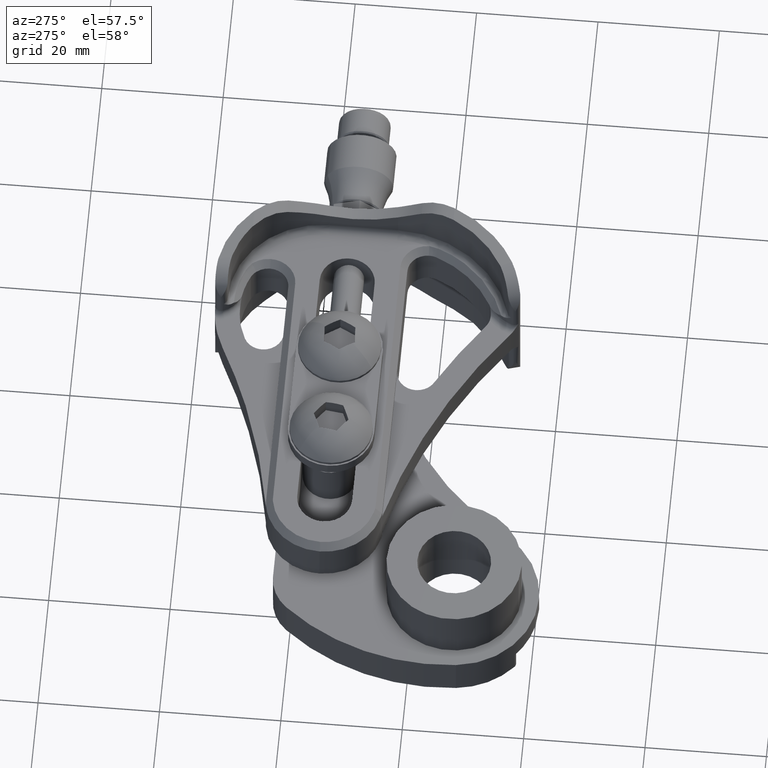
[diagram: clean part render]
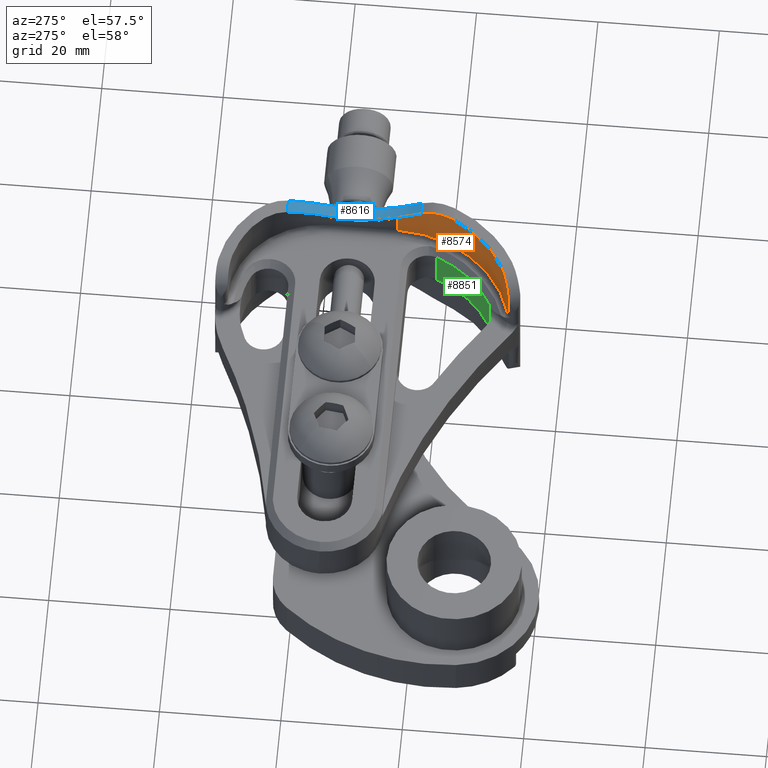
[diagram: same view with three faces highlighted in distinct colors, each labeled with its STEP entity id]
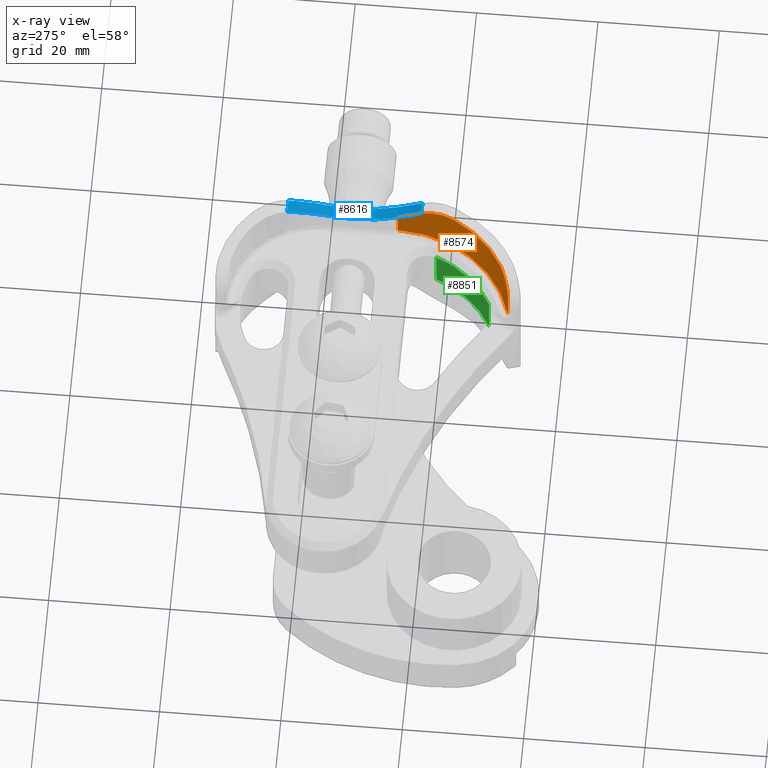
[diagram: x-ray of the same camera — body ghosted, the three highlighted faces saturated]
A machine part, auxiliary view with three faces highlighted in distinct colors.
The next image is the same camera in x-ray (body ghosted, the three faces saturated) — at least one of them is partly hidden behind the body in this view.
Their STEP definitions:

[orange] entity #8574 — the highlighted cylindrical surface (partial cylindrical patch) has radius 20.193 mm, axis along (-0, -0, -1).
#66 = B_SPLINE_CURVE_WITH_KNOTS ( 'NONE', 3,
 ( #7934, #3517, #514, #5762, #1287, #6510 ),
 .UNSPECIFIED., .F., .F.,
 ( 4, 2, 4 ),
 ( 2.235034852805296521E-17, 0.003081094262350567853, 0.006162188524701113154 ),
 .UNSPECIFIED. ) ;
#92 = EDGE_CURVE ( 'NONE', #4321, #6588, #987, .T. ) ;
#171 = DIRECTION ( 'NONE',  ( -1.942569979106741571E-29, 5.152247787224733354E-30, 1.000000000000000000 ) ) ;
#514 = CARTESIAN_POINT ( 'NONE',  ( 0.1102979306784820923, -0.5158705401963460391, -0.5060726423173582678 ) ) ;
#704 = DIRECTION ( 'NONE',  ( 1.000000000000000000, 8.590716961208367124E-16, 0.0000000000000000000 ) ) ;
#828 = EDGE_CURVE ( 'NONE', #3247, #5521, #6571, .T. ) ;
#948 = DIRECTION ( 'NONE',  ( 1.942569979106741571E-29, -5.152247787224734055E-30, -1.000000000000000000 ) ) ;
#987 =( BOUNDED_CURVE ( )  B_SPLINE_CURVE ( 3, ( #3945, #6664, #2362, #8272 ),
 .UNSPECIFIED., .F., .F. ) 
 B_SPLINE_CURVE_WITH_KNOTS ( ( 4, 4 ),
 ( 2.052012819952659939, 2.652010654829786152 ),
 .UNSPECIFIED. ) 
 CURVE ( )  GEOMETRIC_REPRESENTATION_ITEM ( )  RATIONAL_B_SPLINE_CURVE ( ( 1.000000000000000000, 0.9702245393625503755, 0.9702245393625503755, 1.000000000000000000 ) ) 
 REPRESENTATION_ITEM ( '' )  );
#1120 = CARTESIAN_POINT ( 'NONE',  ( 0.5313522239866911301, -1.012070845212795112, -0.5390121731721564391 ) ) ;
#1144 = CARTESIAN_POINT ( 'NONE',  ( 0.6578765363112906162, -1.059776384458196663, -0.2219999999999999196 ) ) ;
#1267 = CARTESIAN_POINT ( 'NONE',  ( 0.08000000015334911285, -0.2949999983655037794, -0.3754530464674544210 ) ) ;
#1287 = CARTESIAN_POINT ( 'NONE',  ( 0.1513186902098405673, -0.6266468634362848400, -0.5370702067610136909 ) ) ;
#1498 = FACE_OUTER_BOUND ( 'NONE', #6177, .T. ) ;
#1851 = CARTESIAN_POINT ( 'NONE',  ( 0.5751798306305195840, -1.031439280984141504, -0.5184893400669392527 ) ) ;
#2362 = CARTESIAN_POINT ( 'NONE',  ( 0.3586772725397623929, -0.9206964840180914544, -0.5445238177852055328 ) ) ;
#2436 = DIRECTION ( 'NONE',  ( 1.000000000000000000, -4.295358480604183439E-17, 0.0000000000000000000 ) ) ;
#2493 = CARTESIAN_POINT ( 'NONE',  ( 0.1702861501486991336, -0.6629719964671093591, -0.5379909813278305197 ) ) ;
#2520 = VERTEX_POINT ( 'NONE', #9549 ) ;
#2619 = CARTESIAN_POINT ( 'NONE',  ( 0.6148491878824364765, -1.046330517246482961, -0.4886674123589442309 ) ) ;
#2757 = ORIENTED_EDGE ( 'NONE', *, *, #4303, .F. ) ;
#3058 = CIRCLE ( 'NONE', #4402, 0.7950000000000007061 ) ;
#3247 = VERTEX_POINT ( 'NONE', #9373 ) ;
#3264 = CYLINDRICAL_SURFACE ( 'NONE', #9135, 0.7950000000000007061 ) ;
#3363 = CARTESIAN_POINT ( 'NONE',  ( 0.6379435170215157491, -1.053853828694177430, -0.4636230078597393112 ) ) ;
#3385 = ORIENTED_EDGE ( 'NONE', *, *, #7802, .F. ) ;
#3517 = CARTESIAN_POINT ( 'NONE',  ( 0.1013114392571240058, -0.4808174924626279489, -0.4879747470860779091 ) ) ;
#3640 = CARTESIAN_POINT ( 'NONE',  ( 0.09492365577034740654, -0.4483163312515318077, -0.4637409315620644179 ) ) ;
#3847 = CARTESIAN_POINT ( 'NONE',  ( 0.5011456603742315830, -0.9966109557364972726, -0.5464481084616324980 ) ) ;
#3945 = CARTESIAN_POINT ( 'NONE',  ( 0.1702861501486991336, -0.6629719964671093591, -0.5379909813278305197 ) ) ;
#3954 = CARTESIAN_POINT ( 'NONE',  ( 0.8749999998903248422, -0.2950000002740035265, -0.5499999999999998224 ) ) ;
#4038 = CARTESIAN_POINT ( 'NONE',  ( 0.5163813756351165463, -1.004729327066881561, -0.5435731828224922291 ) ) ;
#4073 = CARTESIAN_POINT ( 'NONE',  ( 0.09492365577034740654, -0.4483163312515318077, -0.4637409315620644179 ) ) ;
#4129 = CARTESIAN_POINT ( 'NONE',  ( 0.6533098982328265913, -1.058479557805904081, -0.4429805944951979990 ) ) ;
#4250 = CARTESIAN_POINT ( 'NONE',  ( 0.6578764476375358328, -1.059776696795379669, -0.3644199867943336280 ) ) ;
#4303 = EDGE_CURVE ( 'NONE', #2520, #7319, #7047, .T. ) ;
#4321 = VERTEX_POINT ( 'NONE', #2493 ) ;
#4384 = CARTESIAN_POINT ( 'NONE',  ( 0.08000000015334911285, -0.2949999983655037794, -0.3754530464674544210 ) ) ;
#4402 = AXIS2_PLACEMENT_3D ( 'NONE', #9524, #5191, #704 ) ;
#4568 = CARTESIAN_POINT ( 'NONE',  ( 0.6578765363112906162, -1.059776384458196663, -0.2219999999999999196 ) ) ;
#4650 = CARTESIAN_POINT ( 'NONE',  ( 0.6578764476375358328, -1.059776696795379669, -0.2932099933971669126 ) ) ;
#4755 = CARTESIAN_POINT ( 'NONE',  ( 0.07999999989032405279, -0.2949999983655037239, -0.5499999999999999334 ) ) ;
#4902 = ORIENTED_EDGE ( 'NONE', *, *, #9183, .F. ) ;
#5077 = VECTOR ( 'NONE', #948, 39.37007874015748143 ) ;
#5191 = DIRECTION ( 'NONE',  ( 1.942569979106741571E-29, -5.152247787224733354E-30, -1.000000000000000000 ) ) ;
#5200 = B_SPLINE_CURVE_WITH_KNOTS ( 'NONE', 3,
 ( #3640, #8047, #8762, #4384 ),
 .UNSPECIFIED., .F., .F.,
 ( 4, 4 ),
 ( 1.166915873571243093E-17, 0.004509724334207698519 ),
 .UNSPECIFIED. ) ;
#5521 = VERTEX_POINT ( 'NONE', #1144 ) ;
#5762 = CARTESIAN_POINT ( 'NONE',  ( 0.1356547551739493707, -0.5898247943089420797, -0.5309649571294929871 ) ) ;
#5987 = ORIENTED_EDGE ( 'NONE', *, *, #828, .F. ) ;
#6119 = CARTESIAN_POINT ( 'NONE',  ( 0.6578765363114345011, -1.059776384458323450, -0.4356299801914999548 ) ) ;
#6140 = ORIENTED_EDGE ( 'NONE', *, *, #6844, .T. ) ;
#6177 = EDGE_LOOP ( 'NONE', ( #3385, #6140, #2757, #6208, #5987, #4902, #8705 ) ) ;
#6208 = ORIENTED_EDGE ( 'NONE', *, *, #6915, .F. ) ;
#6334 = CARTESIAN_POINT ( 'NONE',  ( 0.5606760005156149473, -1.025400447947630189, -0.5265348846591456633 ) ) ;
#6510 = CARTESIAN_POINT ( 'NONE',  ( 0.1702861501486991336, -0.6629719964671093591, -0.5379909813278305197 ) ) ;
#6571 = B_SPLINE_CURVE_WITH_KNOTS ( 'NONE', 3,
 ( #6119, #4250, #4650, #4568 ),
 .UNSPECIFIED., .F., .F.,
 ( 4, 4 ),
 ( 0.0000000000000000000, 1.000000000000000000 ),
 .UNSPECIFIED. ) ;
#6588 = VERTEX_POINT ( 'NONE', #3847 ) ;
#6664 = CARTESIAN_POINT ( 'NONE',  ( 0.2450061593756170109, -0.8060704547731534220, -0.5416182611191305840 ) ) ;
#6703 = VERTEX_POINT ( 'NONE', #4073 ) ;
#6844 = EDGE_CURVE ( 'NONE', #6703, #7319, #5200, .T. ) ;
#6915 = EDGE_CURVE ( 'NONE', #5521, #2520, #3058, .T. ) ;
#6967 = CARTESIAN_POINT ( 'NONE',  ( 0.5011456603742315830, -0.9966109557364972726, -0.5464481084616324980 ) ) ;
#7047 = LINE ( 'NONE', #4755, #5077 ) ;
#7067 = CARTESIAN_POINT ( 'NONE',  ( 0.6022145673973170465, -1.041875529319804983, -0.4995553996819903086 ) ) ;
#7319 = VERTEX_POINT ( 'NONE', #1267 ) ;
#7781 = CARTESIAN_POINT ( 'NONE',  ( 0.6323575138046474420, -1.052091389491174755, -0.4701578945256206232 ) ) ;
#7802 = EDGE_CURVE ( 'NONE', #6703, #4321, #66, .T. ) ;
#7934 = CARTESIAN_POINT ( 'NONE',  ( 0.09492365577034740654, -0.4483163312515318077, -0.4637409315620644179 ) ) ;
#8047 = CARTESIAN_POINT ( 'NONE',  ( 0.08562427084575360836, -0.4010008877610077294, -0.4284611542784509397 ) ) ;
#8272 = CARTESIAN_POINT ( 'NONE',  ( 0.5011456603742315830, -0.9966109557364972726, -0.5464481084616324980 ) ) ;
#8334 = B_SPLINE_CURVE_WITH_KNOTS ( 'NONE', 3,
 ( #6967, #4038, #1120, #6334, #1851, #7067, #2619, #7781, #3363, #8517, #4129, #9221 ),
 .UNSPECIFIED., .F., .F.,
 ( 4, 2, 2, 2, 2, 4 ),
 ( 1.993045536433795362E-17, 0.001314768276617615328, 0.002629536553235210707, 0.003944304829852809773, 0.004601688968161609522, 0.005259073106470409271 ),
 .UNSPECIFIED. ) ;
#8517 = CARTESIAN_POINT ( 'NONE',  ( 0.6484059697891784158, -1.057043341889561283, -0.4500480678211302155 ) ) ;
#8574 = ADVANCED_FACE ( 'NONE', ( #1498 ), #3264, .F. ) ;
#8705 = ORIENTED_EDGE ( 'NONE', *, *, #92, .F. ) ;
#8762 = CARTESIAN_POINT ( 'NONE',  ( 0.07999999975831374732, -0.3499894319795386899, -0.3989784680911551140 ) ) ;
#9135 = AXIS2_PLACEMENT_3D ( 'NONE', #3954, #171, #2436 ) ;
#9183 = EDGE_CURVE ( 'NONE', #6588, #3247, #8334, .T. ) ;
#9221 = CARTESIAN_POINT ( 'NONE',  ( 0.6578765363114345011, -1.059776384458323450, -0.4356299801914999548 ) ) ;
#9373 = CARTESIAN_POINT ( 'NONE',  ( 0.6578765363114345011, -1.059776384458323450, -0.4356299801914999548 ) ) ;
#9524 = CARTESIAN_POINT ( 'NONE',  ( 0.8749999998903248422, -0.2950000002740035265, -0.2219999999999999196 ) ) ;
#9549 = CARTESIAN_POINT ( 'NONE',  ( 0.07999999989032460790, -0.2949999983654961744, -0.2219999999999999751 ) ) ;

[blue] entity #8616 — the highlighted cylindrical surface (partial cylindrical patch) has radius 19.05 mm, axis along (-1, 0, 0).
#211 = EDGE_CURVE ( 'NONE', #7319, #6436, #1268, .T. ) ;
#289 = CARTESIAN_POINT ( 'NONE',  ( 0.1090515474671307772, 0.3352715135350957665, -0.3936802972346292173 ) ) ;
#292 = EDGE_CURVE ( 'NONE', #5027, #2082, #6752, .T. ) ;
#523 = AXIS2_PLACEMENT_3D ( 'NONE', #8407, #4722, #5536 ) ;
#542 = CARTESIAN_POINT ( 'NONE',  ( 0.1427939972888279674, 0.4172785631699938991, -0.4417997107750022967 ) ) ;
#689 = CARTESIAN_POINT ( 'NONE',  ( -3.445488492270663157E-10, -0.3499205712378404276, -0.3989490081135677602 ) ) ;
#1056 = CARTESIAN_POINT ( 'NONE',  ( 0.1331811675249211790, 0.3978119999573185295, -0.4287654107706241891 ) ) ;
#1125 = ORIENTED_EDGE ( 'NONE', *, *, #2909, .F. ) ;
#1267 = CARTESIAN_POINT ( 'NONE',  ( 0.08000000015334911285, -0.2949999983655037794, -0.3754530464674544210 ) ) ;
#1268 = CIRCLE ( 'NONE', #4561, 0.7499999999999998890 ) ;
#1297 = CARTESIAN_POINT ( 'NONE',  ( 0.01353665031845256717, -0.4483163312515334176, -0.4637409315620607542 ) ) ;
#1456 = CARTESIAN_POINT ( 'NONE',  ( 0.005106482937376046437, -0.4009483817105403136, -0.4284220042329298095 ) ) ;
#1546 = CARTESIAN_POINT ( 'NONE',  ( 1.306787819905680938E-09, 0.1482960026661968023, -0.3298073072235007674 ) ) ;
#1854 = DIRECTION ( 'NONE',  ( -1.000000000000000000, 2.775557561562891967E-17, 1.932709217791477242E-29 ) ) ;
#1869 = AXIS2_PLACEMENT_3D ( 'NONE', #3947, #8855, #2107 ) ;
#2082 = VERTEX_POINT ( 'NONE', #7624 ) ;
#2107 = DIRECTION ( 'NONE',  ( 0.0000000000000000000, 0.0000000000000000000, -1.000000000000000000 ) ) ;
#2270 = ORIENTED_EDGE ( 'NONE', *, *, #292, .F. ) ;
#2537 = CARTESIAN_POINT ( 'NONE',  ( -1.096760477712379116E-10, 0.4172785631699929554, -0.4417997107750067931 ) ) ;
#2780 = DIRECTION ( 'NONE',  ( -1.000000000000000000, 2.775557561562891967E-17, 1.932709217791477242E-29 ) ) ;
#2865 = CIRCLE ( 'NONE', #1869, 0.7499999999999998890 ) ;
#2903 = DIRECTION ( 'NONE',  ( 0.0000000000000000000, -4.440892098514874567E-15, -1.000000000000000000 ) ) ;
#2909 = EDGE_CURVE ( 'NONE', #2082, #5944, #7833, .T. ) ;
#2943 = VECTOR ( 'NONE', #7813, 39.37007874015748143 ) ;
#2959 = B_SPLINE_CURVE_WITH_KNOTS ( 'NONE', 3,
 ( #8423, #6972, #9137, #4778, #289, #5530, #1056, #6276 ),
 .UNSPECIFIED., .F., .F.,
 ( 4, 2, 2, 4 ),
 ( 0.0000000000000000000, 0.003802409226754253913, 0.005703613840131379134, 0.007604818453508506090 ),
 .UNSPECIFIED. ) ;
#2961 = CARTESIAN_POINT ( 'NONE',  ( 0.08000000068544931009, 0.1482960011843963422, -0.3298073069246059696 ) ) ;
#2963 = ORIENTED_EDGE ( 'NONE', *, *, #7226, .F. ) ;
#3034 = CYLINDRICAL_SURFACE ( 'NONE', #523, 0.7499999999999998890 ) ;
#3035 = CARTESIAN_POINT ( 'NONE',  ( 1.891642471126310149E-09, 0.1729691938370575832, -0.3347841461752045222 ) ) ;
#3640 = CARTESIAN_POINT ( 'NONE',  ( 0.09492365577034740654, -0.4483163312515318077, -0.4637409315620644179 ) ) ;
#3659 = EDGE_LOOP ( 'NONE', ( #7362, #7334, #2963, #6015, #3981, #1125, #2270, #8690 ) ) ;
#3947 = CARTESIAN_POINT ( 'NONE',  ( 8.274518974641630167E-10, -2.740035342101275231E-10, -1.065000000000000169 ) ) ;
#3981 = ORIENTED_EDGE ( 'NONE', *, *, #4409, .F. ) ;
#4000 = CARTESIAN_POINT ( 'NONE',  ( 0.001323858787829107313, 0.1972181681757338989, -0.3409644625508653215 ) ) ;
#4064 = CARTESIAN_POINT ( 'NONE',  ( 0.05480368414606802407, 0.4172785631699980069, -0.4417997107750024077 ) ) ;
#4073 = CARTESIAN_POINT ( 'NONE',  ( 0.09492365577034740654, -0.4483163312515318077, -0.4637409315620644179 ) ) ;
#4384 = CARTESIAN_POINT ( 'NONE',  ( 0.08000000015334911285, -0.2949999983655037794, -0.3754530464674544210 ) ) ;
#4409 = EDGE_CURVE ( 'NONE', #5944, #7514, #2865, .T. ) ;
#4561 = AXIS2_PLACEMENT_3D ( 'NONE', #8309, #2780, #2903 ) ;
#4638 = B_SPLINE_CURVE_WITH_KNOTS ( 'NONE', 3,
 ( #5176, #689, #1456, #6680 ),
 .UNSPECIFIED., .F., .F.,
 ( 4, 4 ),
 ( 9.082235670257418936E-13, 0.004506899887366680110 ),
 .UNSPECIFIED. ) ;
#4722 = DIRECTION ( 'NONE',  ( 1.000000000000000000, -2.775557561562891967E-17, -1.932709217791477242E-29 ) ) ;
#4778 = CARTESIAN_POINT ( 'NONE',  ( 0.1023318196052253187, 0.3131425205207762907, -0.3830599769993444648 ) ) ;
#4801 = CARTESIAN_POINT ( 'NONE',  ( 0.01016994846164503627, 0.2683394396907051727, -0.3642210438163758224 ) ) ;
#4912 = VERTEX_POINT ( 'NONE', #1297 ) ;
#5027 = VERTEX_POINT ( 'NONE', #542 ) ;
#5176 = CARTESIAN_POINT ( 'NONE',  ( 3.588877882540628677E-10, -0.2949999965319944906, -0.3754530456830474372 ) ) ;
#5200 = B_SPLINE_CURVE_WITH_KNOTS ( 'NONE', 3,
 ( #3640, #8047, #8762, #4384 ),
 .UNSPECIFIED., .F., .F.,
 ( 4, 4 ),
 ( 1.166915873571243093E-17, 0.004509724334207698519 ),
 .UNSPECIFIED. ) ;
#5241 = CARTESIAN_POINT ( 'NONE',  ( 3.588877882540628677E-10, -0.2949999965319944906, -0.3754530456830474372 ) ) ;
#5530 = CARTESIAN_POINT ( 'NONE',  ( 0.1244666690246662433, 0.3775467864406481522, -0.4165128720365591786 ) ) ;
#5536 = DIRECTION ( 'NONE',  ( 0.0000000000000000000, 0.0000000000000000000, -1.000000000000000000 ) ) ;
#5944 = VERTEX_POINT ( 'NONE', #7308 ) ;
#5976 = EDGE_CURVE ( 'NONE', #7514, #4912, #4638, .T. ) ;
#6015 = ORIENTED_EDGE ( 'NONE', *, *, #5976, .F. ) ;
#6276 = CARTESIAN_POINT ( 'NONE',  ( 0.1427939972888279674, 0.4172785631699938991, -0.4417997107750022967 ) ) ;
#6436 = VERTEX_POINT ( 'NONE', #2961 ) ;
#6523 = CARTESIAN_POINT ( 'NONE',  ( 0.02449457514959593393, 0.3359146788927947491, -0.3926532663857130734 ) ) ;
#6680 = CARTESIAN_POINT ( 'NONE',  ( 0.01353665031845256717, -0.4483163312515334176, -0.4637409315620607542 ) ) ;
#6681 = EDGE_CURVE ( 'NONE', #6436, #5027, #2959, .T. ) ;
#6703 = VERTEX_POINT ( 'NONE', #4073 ) ;
#6752 = LINE ( 'NONE', #2537, #8217 ) ;
#6844 = EDGE_CURVE ( 'NONE', #6703, #7319, #5200, .T. ) ;
#6924 = CARTESIAN_POINT ( 'NONE',  ( 0.03807249823363741820, 0.3779237457079225870, -0.4154487575114967357 ) ) ;
#6972 = CARTESIAN_POINT ( 'NONE',  ( 0.08000000107398648475, 0.1980585129828306978, -0.3398449223575950029 ) ) ;
#7089 = CARTESIAN_POINT ( 'NONE',  ( 10.85277763464034528, -0.4483163312515323629, -0.4637409315620607542 ) ) ;
#7226 = EDGE_CURVE ( 'NONE', #4912, #6703, #7340, .T. ) ;
#7308 = CARTESIAN_POINT ( 'NONE',  ( 1.306787819905680938E-09, 0.1482960026661968023, -0.3298073072235007674 ) ) ;
#7319 = VERTEX_POINT ( 'NONE', #1267 ) ;
#7334 = ORIENTED_EDGE ( 'NONE', *, *, #6844, .F. ) ;
#7340 = LINE ( 'NONE', #7089, #2943 ) ;
#7362 = ORIENTED_EDGE ( 'NONE', *, *, #211, .F. ) ;
#7514 = VERTEX_POINT ( 'NONE', #5241 ) ;
#7624 = CARTESIAN_POINT ( 'NONE',  ( 0.05480368414606802407, 0.4172785631699980069, -0.4417997107750024077 ) ) ;
#7813 = DIRECTION ( 'NONE',  ( 1.000000000000000000, -2.775557561562891967E-17, -1.932709217791477242E-29 ) ) ;
#7833 = B_SPLINE_CURVE_WITH_KNOTS ( 'NONE', 3,
 ( #4064, #6924, #6523, #4801, #8146, #4000, #3035, #1546 ),
 .UNSPECIFIED., .F., .F.,
 ( 4, 2, 2, 4 ),
 ( 0.0000000000000000000, 0.003782103843327196038, 0.005673155764990792972, 0.007564207686654390340 ),
 .UNSPECIFIED. ) ;
#8047 = CARTESIAN_POINT ( 'NONE',  ( 0.08562427084575360836, -0.4010008877610077294, -0.4284611542784509397 ) ) ;
#8146 = CARTESIAN_POINT ( 'NONE',  ( 0.006398872499705073220, 0.2448999823114126895, -0.3556718220840304201 ) ) ;
#8217 = VECTOR ( 'NONE', #1854, 39.37007874015748143 ) ;
#8309 = CARTESIAN_POINT ( 'NONE',  ( 0.08000000041637403414, -2.740031927291282947E-10, -1.065000000000000169 ) ) ;
#8407 = CARTESIAN_POINT ( 'NONE',  ( -1.096760477712379116E-10, -2.740032951734280632E-10, -1.065000000000000169 ) ) ;
#8423 = CARTESIAN_POINT ( 'NONE',  ( 0.08000000068544931009, 0.1482960011843963422, -0.3298073069246059696 ) ) ;
#8616 = ADVANCED_FACE ( 'NONE', ( #9547 ), #3034, .F. ) ;
#8690 = ORIENTED_EDGE ( 'NONE', *, *, #6681, .F. ) ;
#8762 = CARTESIAN_POINT ( 'NONE',  ( 0.07999999975831374732, -0.3499894319795386899, -0.3989784680911551140 ) ) ;
#8855 = DIRECTION ( 'NONE',  ( 1.000000000000000000, -2.775557561562891967E-17, -1.932709217791477242E-29 ) ) ;
#9137 = CARTESIAN_POINT ( 'NONE',  ( 0.08600831257573021693, 0.2453717563067488450, -0.3545815076507007335 ) ) ;
#9547 = FACE_OUTER_BOUND ( 'NONE', #3659, .T. ) ;

[green] entity #8851 — the highlighted cylindrical surface (partial cylindrical patch) has radius 18.161 mm, axis along (-0, -0, -1).
#606 = DIRECTION ( 'NONE',  ( 0.0000000000000000000, -1.000000000000000000, -7.163936967828140265E-17 ) ) ;
#706 = CARTESIAN_POINT ( 'NONE',  ( 0.2090280857474073606, -0.5552045622380099577, -0.04418597094240001022 ) ) ;
#996 = ORIENTED_EDGE ( 'NONE', *, *, #6963, .T. ) ;
#1192 = CARTESIAN_POINT ( 'NONE',  ( 0.2090281081791227902, -0.5552045534863481180, -0.1325575709592272666 ) ) ;
#1354 = CARTESIAN_POINT ( 'NONE',  ( 0.2090783871956172213, -0.5553333125783875834, 0.1325574239802086718 ) ) ;
#1369 = CARTESIAN_POINT ( 'NONE',  ( 0.8749999998903247311, -0.2950000002740036931, 0.0000000000000000000 ) ) ;
#1416 = VERTEX_POINT ( 'NONE', #1819 ) ;
#1479 = CARTESIAN_POINT ( 'NONE',  ( 0.2090281043820532147, -0.5552045549677613323, 0.1325574456493209263 ) ) ;
#1819 = CARTESIAN_POINT ( 'NONE',  ( 0.2090783871956172213, -0.5553333125783875834, 0.1325574239802086718 ) ) ;
#2036 = CARTESIAN_POINT ( 'NONE',  ( 0.2090448537911641091, -0.5552474786500544157, 0.1325572829320000035 ) ) ;
#2045 = AXIS2_PLACEMENT_3D ( 'NONE', #9436, #5098, #606 ) ;
#2261 = DIRECTION ( 'NONE',  ( 1.942569979106741571E-29, -5.152247787224734055E-30, -1.000000000000000000 ) ) ;
#2310 = B_SPLINE_CURVE_WITH_KNOTS ( 'NONE', 3,
 ( #1192, #8896, #5845, #5136 ),
 .UNSPECIFIED., .F., .F.,
 ( 4, 4 ),
 ( 0.0000000000000000000, 1.000000000000000000 ),
 .UNSPECIFIED. ) ;
#2368 = EDGE_CURVE ( 'NONE', #9018, #6018, #5501, .T. ) ;
#2380 = EDGE_LOOP ( 'NONE', ( #8788, #9508, #996, #9461, #3444, #2838 ) ) ;
#2564 = CIRCLE ( 'NONE', #2045, 0.7150000078341522958 ) ;
#2608 = CARTESIAN_POINT ( 'NONE',  ( 0.5389982794820986634, -0.9261321961324229246, -0.1325572827616833815 ) ) ;
#2838 = ORIENTED_EDGE ( 'NONE', *, *, #8326, .T. ) ;
#2910 = VERTEX_POINT ( 'NONE', #2608 ) ;
#3043 = DIRECTION ( 'NONE',  ( 1.942569979106741571E-29, -5.152247787224733354E-30, -1.000000000000000000 ) ) ;
#3107 = CARTESIAN_POINT ( 'NONE',  ( 0.2090281081791227902, -0.5552045534863481180, -0.1325575709592272666 ) ) ;
#3205 = CARTESIAN_POINT ( 'NONE',  ( 0.2090784067530623569, -0.5553333049020808820, -0.1325574415371800485 ) ) ;
#3410 = CARTESIAN_POINT ( 'NONE',  ( 0.2090281043820532147, -0.5552045549677613323, 0.1325574456493209263 ) ) ;
#3444 = ORIENTED_EDGE ( 'NONE', *, *, #2368, .T. ) ;
#4314 = CYLINDRICAL_SURFACE ( 'NONE', #4565, 0.7150000031427005132 ) ;
#4351 = DIRECTION ( 'NONE',  ( -1.942569979106741571E-29, 5.152247787224733354E-30, 1.000000000000000000 ) ) ;
#4471 = EDGE_CURVE ( 'NONE', #5997, #2910, #4621, .T. ) ;
#4555 = FACE_OUTER_BOUND ( 'NONE', #2380, .T. ) ;
#4565 = AXIS2_PLACEMENT_3D ( 'NONE', #1369, #4351, #5066 ) ;
#4583 = CIRCLE ( 'NONE', #7845, 0.7149999984511049567 ) ;
#4621 = LINE ( 'NONE', #5439, #6595 ) ;
#4937 = EDGE_CURVE ( 'NONE', #9018, #7096, #2310, .T. ) ;
#5066 = DIRECTION ( 'NONE',  ( 1.000000000000000000, -4.775958009889403150E-17, -1.932709217791477522E-29 ) ) ;
#5098 = DIRECTION ( 'NONE',  ( -1.942569979106741571E-29, 5.152247787224733354E-30, 1.000000000000000000 ) ) ;
#5136 = CARTESIAN_POINT ( 'NONE',  ( 0.2090784067530623569, -0.5553333049020808820, -0.1325574415371800485 ) ) ;
#5439 = CARTESIAN_POINT ( 'NONE',  ( 0.5389982795691083961, -0.9261321959630347544, 0.0000000000000000000 ) ) ;
#5501 = B_SPLINE_CURVE_WITH_KNOTS ( 'NONE', 3,
 ( #7150, #706, #7215, #3410 ),
 .UNSPECIFIED., .F., .F.,
 ( 4, 4 ),
 ( 0.0000000000000000000, 1.000000000000000000 ),
 .UNSPECIFIED. ) ;
#5829 = CARTESIAN_POINT ( 'NONE',  ( 0.2090616259833353863, -0.5552903934412551923, 0.1325572829320000035 ) ) ;
#5845 = CARTESIAN_POINT ( 'NONE',  ( 0.2090615850525122943, -0.5552904111398578868, -0.1325575771430893002 ) ) ;
#5997 = VERTEX_POINT ( 'NONE', #7396 ) ;
#6018 = VERTEX_POINT ( 'NONE', #1479 ) ;
#6595 = VECTOR ( 'NONE', #2261, 39.37007874015748143 ) ;
#6963 = EDGE_CURVE ( 'NONE', #2910, #7096, #4583, .T. ) ;
#7096 = VERTEX_POINT ( 'NONE', #3205 ) ;
#7150 = CARTESIAN_POINT ( 'NONE',  ( 0.2090281081791227902, -0.5552045534863481180, -0.1325575709592272666 ) ) ;
#7215 = CARTESIAN_POINT ( 'NONE',  ( 0.2090280857474073606, -0.5552045622380099577, 0.04418565599480001049 ) ) ;
#7396 = CARTESIAN_POINT ( 'NONE',  ( 0.5389982787471985226, -0.9261321975128292694, 0.1325572806655107572 ) ) ;
#7465 = CARTESIAN_POINT ( 'NONE',  ( 0.8750000201068246497, -0.2950000229956037945, -0.1325572776866757729 ) ) ;
#7531 = B_SPLINE_CURVE_WITH_KNOTS ( 'NONE', 3,
 ( #9413, #2036, #5829, #1354 ),
 .UNSPECIFIED., .F., .F.,
 ( 4, 4 ),
 ( 0.0000000000000000000, 1.000000000000000000 ),
 .UNSPECIFIED. ) ;
#7845 = AXIS2_PLACEMENT_3D ( 'NONE', #7465, #3043, #8206 ) ;
#8206 = DIRECTION ( 'NONE',  ( 0.0000000000000000000, 1.000000000000000000, 9.551916082455347197E-17 ) ) ;
#8326 = EDGE_CURVE ( 'NONE', #6018, #1416, #7531, .T. ) ;
#8788 = ORIENTED_EDGE ( 'NONE', *, *, #8830, .T. ) ;
#8830 = EDGE_CURVE ( 'NONE', #1416, #5997, #2564, .T. ) ;
#8851 = ADVANCED_FACE ( 'NONE', ( #4555 ), #4314, .F. ) ;
#8896 = CARTESIAN_POINT ( 'NONE',  ( 0.2090448241400615081, -0.5552474919025254252, -0.1325575891855929889 ) ) ;
#9018 = VERTEX_POINT ( 'NONE', #3107 ) ;
#9413 = CARTESIAN_POINT ( 'NONE',  ( 0.2090281043820532147, -0.5552045549677613323, 0.1325574456493209263 ) ) ;
#9436 = CARTESIAN_POINT ( 'NONE',  ( 0.8750000201068247607, -0.2950000229956035724, 0.1325572881772403844 ) ) ;
#9461 = ORIENTED_EDGE ( 'NONE', *, *, #4937, .F. ) ;
#9508 = ORIENTED_EDGE ( 'NONE', *, *, #4471, .T. ) ;